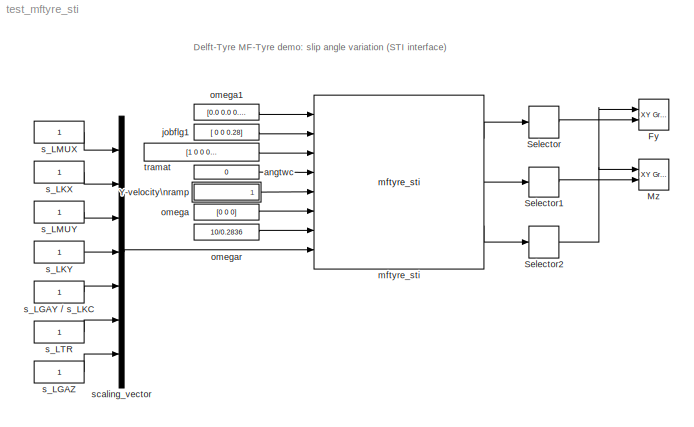
MODEL test_mftyre_sti
KIND model
CONFIG AbsTol = 1e-5
CONFIG FixedStep = 0.02
CONFIG MaxStep = 0.05
CONFIG MinStep = auto
CONFIG RelTol = 1e-5
CONFIG Solver = ode4
CONFIG SolverMode = SingleTasking
CONFIG StartTime = 0.0
CONFIG StopTime = 2*pi
BLOCK [Reference] Fy  REF=simulink3/Sinks/XY Graph
  Ports = [2]
  SourceBlock = simulink3/Sinks/XY Graph
  SourceType = XY scope.
  st = -1
  xmax = 0.3
  xmin = -0.3
  ymax = 3500
  ymin = -3500
BLOCK [Reference] Mz  REF=simulink3/Sinks/XY Graph
  Ports = [2]
  SourceBlock = simulink3/Sinks/XY Graph
  SourceType = XY scope.
  st = -1
  xmax = 0.3
  xmin = -0.3
  ymax = 50
  ymin = -50
BLOCK [Selector] Selector
  ColumnSrc = Internal
  Columns = 1
  ElementSrc = Internal
  Elements = 2
  InputPortWidth = 3
  InputType = Vector
  Ports = [1, 1]
  RowSrc = Internal
  Rows = 1
BLOCK [Selector] Selector1
  ColumnSrc = Internal
  Columns = 1
  ElementSrc = Internal
  Elements = 3
  InputPortWidth = 3
  InputType = Vector
  Ports = [1, 1]
  RowSrc = Internal
  Rows = 1
BLOCK [Selector] Selector2
  ColumnSrc = Internal
  Columns = 1
  ElementSrc = Internal
  Elements = 1
  InputPortWidth = 40
  InputType = Vector
  Ports = [1, 1]
  RowSrc = Internal
  Rows = 1
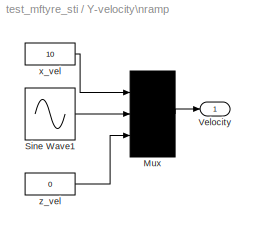
BLOCK [SubSystem] Y-velocity\nramp
  Ports = [0, 1]
  RTWFcnNameOpts = Auto
  RTWFileNameOpts = Auto
  RTWSystemCode = Auto
  ShowPortLabels = on
  TreatAsAtomicUnit = off
BLOCK [Mux] Y-velocity\nramp/Mux
  DisplayOption = none
  Inputs = 3
  Ports = [3, 1]
BLOCK [Sin] Y-velocity\nramp/Sine Wave1
  Amplitude = 5
  Bias = 0
  Frequency = 1
  Offset = 0
  Phase = 0
  SampleTime = 0
  Samples = 10
  SineType = Time-based
  VectorParams1D = on
BLOCK [Outport] Y-velocity\nramp/Velocity
  InitialOutput = 0
  OutputWhenDisabled = held
  Port = 1
BLOCK [Constant] Y-velocity\nramp/x_vel
  Value = 10
  VectorParams1D = on
BLOCK [Constant] Y-velocity\nramp/z_vel
  Value = 0
  VectorParams1D = on
BLOCK [Constant] angtwc
  Value = 0
  VectorParams1D = on
BLOCK [Constant] jobflg1
  Value = [ 0 0 0.28]
  VectorParams1D = on
BLOCK [Reference] mftyre_sti  REF=dtlib/mftyre_sti  (lib defined in mdl_8cef2accd2ac)
  Ports = [8, 3]
  SourceBlock = dtlib/mftyre_sti
  SourceType = MFTYRE_STI
  idtyre = 1
  typarr = mfread('mft_car175_70R13.tir')
  use_mode = 4
BLOCK [Constant] omega
  Value = [0 0 0]
  VectorParams1D = on
BLOCK [Constant] omega1
  Value = [0.0 0.0 0.0]
  VectorParams1D = on
BLOCK [Constant] omegar
  Value = 10/0.2836
  VectorParams1D = on
BLOCK [Constant] s_LGAY // s_LKC
  Value = 1
  VectorParams1D = on
BLOCK [Constant] s_LGAZ
  Value = 1
  VectorParams1D = on
BLOCK [Constant] s_LKX
  Value = 1
  VectorParams1D = on
BLOCK [Constant] s_LKY
  Value = 1
  VectorParams1D = on
BLOCK [Constant] s_LMUX
  Value = 1
  VectorParams1D = on
BLOCK [Constant] s_LMUY
  Value = 1
  VectorParams1D = on
BLOCK [Constant] s_LTR
  Value = 1
  VectorParams1D = on
BLOCK [Mux] scaling_vector
  DisplayOption = bar
  Inputs = 7
  Ports = [7, 1]
BLOCK [Constant] tramat
  Value = [1 0 0    0 1 0    0 0 1]
  VectorParams1D = on
LINE Selector1:1 -> Mz:2
NET Selector2:1 -> Fy:1, Mz:1
LINE Selector:1 -> Fy:2
LINE Y-velocity\nramp/Mux:1 -> Y-velocity\nramp/Velocity:1
LINE Y-velocity\nramp/Sine Wave1:1 -> Y-velocity\nramp/Mux:2
LINE Y-velocity\nramp/x_vel:1 -> Y-velocity\nramp/Mux:1
LINE Y-velocity\nramp/z_vel:1 -> Y-velocity\nramp/Mux:3
LINE Y-velocity\nramp:1 -> mftyre_sti:5
LINE angtwc:1 -> mftyre_sti:4
LINE jobflg1:1 -> mftyre_sti:2
LINE mftyre_sti:1 -> Selector:1
LINE mftyre_sti:2 -> Selector1:1
LINE mftyre_sti:3 -> Selector2:1
LINE omega1:1 -> mftyre_sti:1
LINE omega:1 -> mftyre_sti:6
LINE omegar:1 -> mftyre_sti:7
LINE s_LGAY // s_LKC:1 -> scaling_vector:5
LINE s_LGAZ:1 -> scaling_vector:7
LINE s_LKX:1 -> scaling_vector:2
LINE s_LKY:1 -> scaling_vector:4
LINE s_LMUX:1 -> scaling_vector:1
LINE s_LMUY:1 -> scaling_vector:3
LINE s_LTR:1 -> scaling_vector:6
LINE scaling_vector:1 -> mftyre_sti:8
LINE tramat:1 -> mftyre_sti:3
note: NET lines group one-source signal fan-out (src -> all destinations, sorted); 1:1 wires keep LINE
